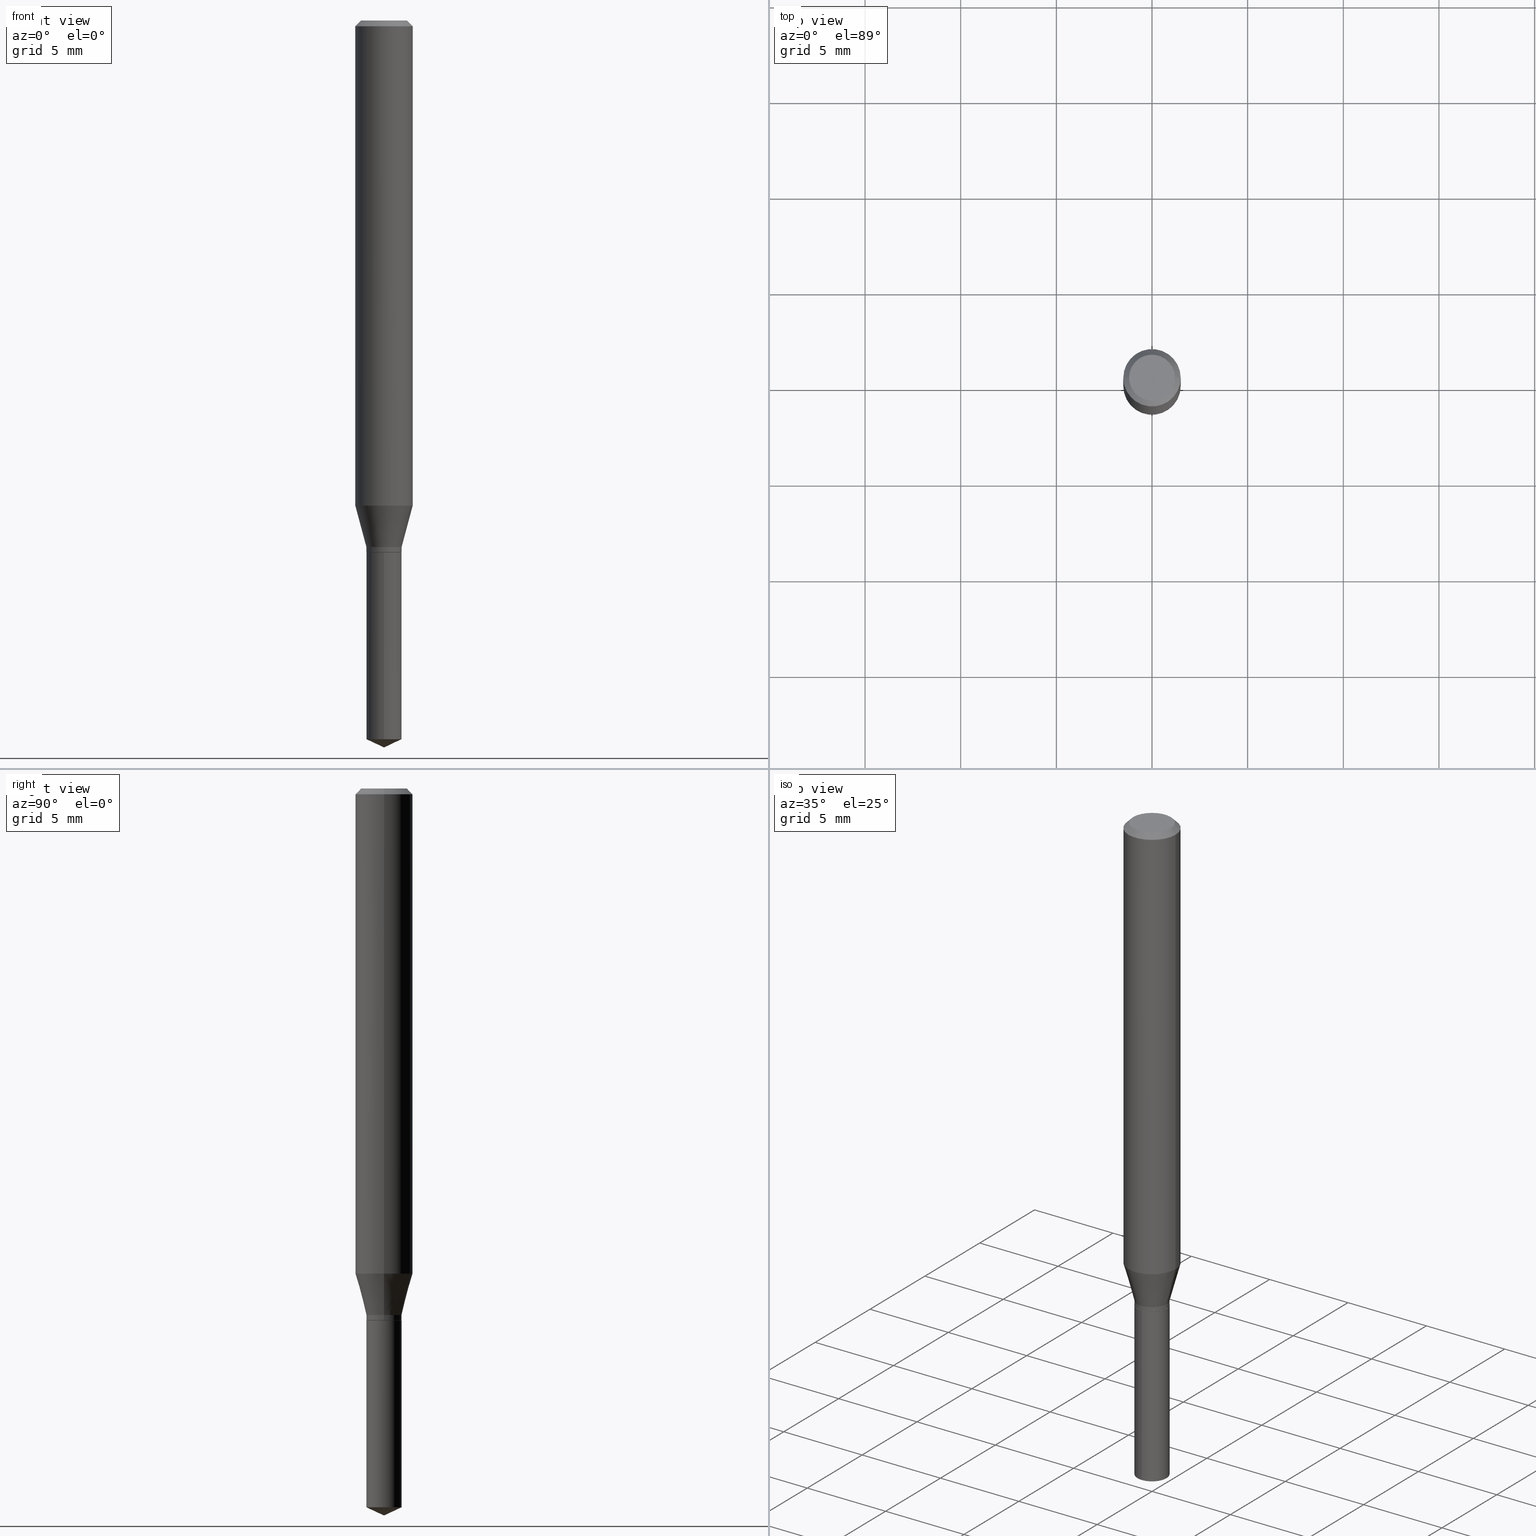
[diagram: canonical four-view strip — front | top / right | iso, engineering-drawing reading convention]
A machine part, canonical four-view strip (front | top / right | iso — engineering-drawing reading convention). The complete STEP part file that produces these views, byte-faithful:
ISO-10303-21;
HEADER;
FILE_DESCRIPTION (( 'STEP AP203' ),
    '1' );
FILE_NAME ('07581.STEP',
    '2024-04-23T23:16:48',
    ( '' ),
    ( '' ),
    'SwSTEP 2.0',
    'SolidWorks 2023',
    '' );
FILE_SCHEMA (( 'CONFIG_CONTROL_DESIGN' ));
ENDSEC;

DATA;
#1 = APPROVAL_ROLE ( '' ) ;
#2 = DIRECTION ( 'NONE',  ( -2.445470214571802116E-29, 3.491479321953280158E-15, 1.000000000000000000 ) ) ;
#3 = ADVANCED_FACE ( 'NONE', ( #307 ), #236, .F. ) ;
#4 = AXIS2_PLACEMENT_3D ( 'NONE', #257, #133, #23 ) ;
#5 = APPROVAL_PERSON_ORGANIZATION ( #386, #292, #40 ) ;
#6 = PRODUCT ( '07581', '07581', '', ( #34 ) ) ;
#7 = LINE ( 'NONE', #395, #233 ) ;
#8 = DIRECTION ( 'NONE',  ( 6.982962677686265922E-15, 1.000000000000000000, -3.491479321953280158E-15 ) ) ;
#9 = PERSON_AND_ORGANIZATION ( #211, #358 ) ;
#10 = DIRECTION ( 'NONE',  ( 0.2588190451025211836, 1.565188264969622559E-15, 0.9659258262890679791 ) ) ;
#11 = EDGE_CURVE ( 'NONE', #403, #477, #388, .T. ) ;
#12 = VECTOR ( 'NONE', #198, 39.37007874015748143 ) ;
#13 = CONICAL_SURFACE ( 'NONE', #38, 0.03620000000000000301, 0.2617993877991499074 ) ;
#14 = LINE ( 'NONE', #315, #456 ) ;
#15 = ADVANCED_FACE ( 'NONE', ( #482 ), #273, .T. ) ;
#16 = CARTESIAN_POINT ( 'NONE',  ( 2.675342873966538993E-29, -3.819680584694400481E-15, -1.093999999999999861 ) ) ;
#17 = ORIENTED_EDGE ( 'NONE', *, *, #64, .F. ) ;
#18 = DIRECTION ( 'NONE',  ( 1.000000000000000000, -6.982962677686261189E-15, 0.000000000000000000 ) ) ;
#19 = VERTEX_POINT ( 'NONE', #455 ) ;
#20 = AXIS2_PLACEMENT_3D ( 'NONE', #377, #263, #262 ) ;
#21 = LINE ( 'NONE', #476, #373 ) ;
#22 = VERTEX_POINT ( 'NONE', #79 ) ;
#23 = DIRECTION ( 'NONE',  ( 1.000000000000000000, -6.982962677686266711E-15, 0.000000000000000000 ) ) ;
#24 = EDGE_LOOP ( 'NONE', ( #484, #272, #218, #367 ) ) ;
#25 = FACE_OUTER_BOUND ( 'NONE', #328, .T. ) ;
#26 = ORIENTED_EDGE ( 'NONE', *, *, #468, .F. ) ;
#27 = CARTESIAN_POINT ( 'NONE',  ( 8.265746106709734507E-48, -1.180129479067563789E-33, -3.380025165646692144E-19 ) ) ;
#28 = CIRCLE ( 'NONE', #134, 0.03620000000000000301 ) ;
#29 = CARTESIAN_POINT ( 'NONE',  ( 2.888098660104663766E-31, -4.123439461173779647E-17, -0.01181000000000007044 ) ) ;
#30 = AXIS2_PLACEMENT_3D ( 'NONE', #27, #147, #410 ) ;
#31 = APPLICATION_PROTOCOL_DEFINITION ( 'international standard', 'config_control_design', 1994, #73 ) ;
#32 = VERTEX_POINT ( 'NONE', #72 ) ;
#33 = ADVANCED_FACE ( 'NONE', ( #371 ), #282, .T. ) ;
#34 = MECHANICAL_CONTEXT ( 'NONE', #231, 'mechanical' ) ;
#35 = VERTEX_POINT ( 'NONE', #445 ) ;
#36 = EDGE_CURVE ( 'NONE', #35, #22, #346, .T. ) ;
#37 = ORIENTED_EDGE ( 'NONE', *, *, #330, .F. ) ;
#38 = AXIS2_PLACEMENT_3D ( 'NONE', #179, #332, #55 ) ;
#39 = ORIENTED_EDGE ( 'NONE', *, *, #287, .T. ) ;
#40 = APPROVAL_ROLE ( '' ) ;
#41 = CARTESIAN_POINT ( 'NONE',  ( -0.03620000000000000301, -3.526152708425275685E-15, -1.083599999999999897 ) ) ;
#42 = DATE_AND_TIME ( #426, #130 ) ;
#43 = CARTESIAN_POINT ( 'NONE',  ( 2.572164703451925270E-16, 0.03619999999999484741, -1.479219662774789112 ) ) ;
#44 = AXIS2_PLACEMENT_3D ( 'NONE', #169, #470, #260 ) ;
#45 = MANIFOLD_SOLID_BREP ( 'Body-Move/Copy2[1]', #181 ) ;
#46 = DIRECTION ( 'NONE',  ( -2.445468806185136597E-29, 3.491481338843145583E-15, 1.000000000000000000 ) ) ;
#47 = DIRECTION ( 'NONE',  ( -2.445468806185136877E-29, 3.491481338843145188E-15, 1.000000000000000000 ) ) ;
#48 = APPROVAL_DATE_TIME ( #80, #369 ) ;
#49 = CARTESIAN_POINT ( 'NONE',  ( 2.676565608369631794E-29, -3.821426325363822773E-15, -1.094499999999999806 ) ) ;
#50 = PRODUCT_DEFINITION_FORMATION_WITH_SPECIFIED_SOURCE ( 'ANY', '', #6, .NOT_KNOWN. ) ;
#51 = DIRECTION ( 'NONE',  ( -6.982962677686265922E-15, -1.000000000000000000, 0.000000000000000000 ) ) ;
#52 = FACE_OUTER_BOUND ( 'NONE', #228, .T. ) ;
#53 = ORIENTED_EDGE ( 'NONE', *, *, #300, .F. ) ;
#54 = EDGE_CURVE ( 'NONE', #268, #403, #288, .T. ) ;
#55 = DIRECTION ( 'NONE',  ( 1.000000000000000000, -6.982962677686262766E-15, 0.000000000000000000 ) ) ;
#56 = EDGE_LOOP ( 'NONE', ( #362, #276, #293 ) ) ;
#57 = AXIS2_PLACEMENT_3D ( 'NONE', #131, #46, #162 ) ;
#58 = CONICAL_SURFACE ( 'NONE', #224, 0.03620000000000000301, 0.2617993877991499074 ) ;
#59 = CARTESIAN_POINT ( 'NONE',  ( -9.261968845786000133E-28, 1.322362114038720264E-13, 37.87397874015748300 ) ) ;
#60 = CC_DESIGN_APPROVAL ( #369, ( #50 ) ) ;
#61 = CARTESIAN_POINT ( 'NONE',  ( 2.676565608369632355E-29, -3.821426325363822773E-15, -1.094500000000000028 ) ) ;
#62 = VERTEX_POINT ( 'NONE', #357 ) ;
#63 = LENGTH_MEASURE_WITH_UNIT ( LENGTH_MEASURE( 0.02539999999999999897 ), #116 );
#64 = EDGE_CURVE ( 'NONE', #403, #22, #241, .T. ) ;
#65 = VERTEX_POINT ( 'NONE', #283 ) ;
#66 = CARTESIAN_POINT ( 'NONE',  ( 2.676565608369631794E-29, -3.821426325363822773E-15, -1.094499999999999806 ) ) ;
#67 = AXIS2_PLACEMENT_3D ( 'NONE', #119, #450, #380 ) ;
#68 = ORIENTED_EDGE ( 'NONE', *, *, #354, .T. ) ;
#69 = EDGE_LOOP ( 'NONE', ( #339, #370, #194, #95 ) ) ;
#70 = ADVANCED_FACE ( 'NONE', ( #318 ), #390, .T. ) ;
#71 = PERSON_AND_ORGANIZATION ( #211, #358 ) ;
#72 = CARTESIAN_POINT ( 'NONE',  ( -2.527832489322067476E-16, -0.03620000000000517942, -1.479219662774789112 ) ) ;
#73 = APPLICATION_CONTEXT ( 'configuration controlled 3d designs of mechanical parts and assemblies' ) ;
#74 = DIRECTION ( 'NONE',  ( -2.445468806185136597E-29, 3.491481338843145583E-15, 1.000000000000000000 ) ) ;
#75 = ORIENTED_EDGE ( 'NONE', *, *, #287, .F. ) ;
#76 = VECTOR ( 'NONE', #127, 39.37007874015748854 ) ;
#77 = CC_DESIGN_APPROVAL ( #292, ( #244 ) ) ;
#78 = SECURITY_CLASSIFICATION_LEVEL ( 'unclassified' ) ;
#79 = CARTESIAN_POINT ( 'NONE',  ( -0.05904999999999999832, -1.343854144028238123E-15, -0.01181000000000007044 ) ) ;
#80 = DATE_AND_TIME ( #394, #216 ) ;
#81 = EDGE_CURVE ( 'NONE', #62, #32, #14, .T. ) ;
#82 = LINE ( 'NONE', #387, #12 ) ;
#83 = FACE_OUTER_BOUND ( 'NONE', #417, .T. ) ;
#84 = CIRCLE ( 'NONE', #30, 0.04724000000000000421 ) ;
#85 = COORDINATED_UNIVERSAL_TIME_OFFSET ( 5, 0, .BEHIND. ) ;
#86 = CARTESIAN_POINT ( 'NONE',  ( 3.658668015054778287E-29, -5.223602213574301462E-15, -1.496099999999999985 ) ) ;
#87 = PRODUCT_DEFINITION ( 'UNKNOWN', '', #50, #433 ) ;
#88 = PERSON_AND_ORGANIZATION_ROLE ( 'creator' ) ;
#89 = CARTESIAN_POINT ( 'NONE',  ( 0.03570000000000000256, -4.070718092957222949E-15, -1.094500000000000028 ) ) ;
#90 = DIRECTION ( 'NONE',  ( 1.000000000000000000, -6.982962677686266711E-15, 4.876176775795935793E-29 ) ) ;
#91 = VECTOR ( 'NONE', #240, 39.37007874015748143 ) ;
#92 = APPROVAL_PERSON_ORGANIZATION ( #274, #369, #1 ) ;
#93 = FACE_OUTER_BOUND ( 'NONE', #180, .T. ) ;
#94 = EDGE_CURVE ( 'NONE', #22, #375, #469, .T. ) ;
#95 = ORIENTED_EDGE ( 'NONE', *, *, #419, .F. ) ;
#96 = DIRECTION ( 'NONE',  ( -2.445468806185136877E-29, 3.491481338843145188E-15, 1.000000000000000000 ) ) ;
#97 = EDGE_LOOP ( 'NONE', ( #302, #436, #265, #26 ) ) ;
#98 = CARTESIAN_POINT ( 'NONE',  ( -0.05905000000000011628, -3.066049378911078798E-15, -0.9983226390470507638 ) ) ;
#99 = ORIENTED_EDGE ( 'NONE', *, *, #154, .T. ) ;
#100 = AXIS2_PLACEMENT_3D ( 'NONE', #29, #191, #183 ) ;
#101 = AXIS2_PLACEMENT_3D ( 'NONE', #359, #296, #137 ) ;
#102 = CARTESIAN_POINT ( 'NONE',  ( 2.649909998382213991E-29, -3.783369178770431629E-15, -1.083599999999999897 ) ) ;
#103 = ORIENTED_EDGE ( 'NONE', *, *, #11, .F. ) ;
#104 = EDGE_CURVE ( 'NONE', #35, #479, #310, .T. ) ;
#105 = DIRECTION ( 'NONE',  ( 1.000000000000000000, -6.982962677686261189E-15, 0.000000000000000000 ) ) ;
#106 = ORIENTED_EDGE ( 'NONE', *, *, #411, .F. ) ;
#107 = DIRECTION ( 'NONE',  ( -2.445470214571802116E-29, 3.491479321953280158E-15, 1.000000000000000000 ) ) ;
#108 = ORIENTED_EDGE ( 'NONE', *, *, #419, .T. ) ;
#109 = CARTESIAN_POINT ( 'NONE',  ( 0.05905000000000011628, -3.897968810494794000E-15, -0.9983226390470507638 ) ) ;
#110 = AXIS2_PLACEMENT_3D ( 'NONE', #247, #321, #156 ) ;
#111 = ORIENTED_EDGE ( 'NONE', *, *, #159, .F. ) ;
#112 = CIRCLE ( 'NONE', #297, 0.03570000000000000256 ) ;
#113 = CC_DESIGN_SECURITY_CLASSIFICATION ( #244, ( #50 ) ) ;
#114 = CARTESIAN_POINT ( 'NONE',  ( 0.000000000000000000, 0.000000000000000000, 0.000000000000000000 ) ) ;
#115 = EDGE_LOOP ( 'NONE', ( #331, #68, #451, #413 ) ) ;
#116 =( LENGTH_UNIT ( ) NAMED_UNIT ( * ) SI_UNIT ( $, .METRE. ) );
#117 = ORIENTED_EDGE ( 'NONE', *, *, #210, .T. ) ;
#118 = APPROVAL_ROLE ( '' ) ;
#119 = CARTESIAN_POINT ( 'NONE',  ( 4.132873053354867254E-48, -5.900647395337818946E-34, -1.690012582823346072E-19 ) ) ;
#120 = VECTOR ( 'NONE', #151, 39.37007874015748143 ) ;
#121 = CIRCLE ( 'NONE', #199, 0.03620000000000000301 ) ;
#122 = CC_DESIGN_PERSON_AND_ORGANIZATION_ASSIGNMENT ( #420, #88, ( #50 ) ) ;
#123 = APPROVAL_DATE_TIME ( #285, #227 ) ;
#124 = CARTESIAN_POINT ( 'NONE',  ( 0.05905000000000006077, -4.123439461173744764E-16, 2.879382386107503023E-30 ) ) ;
#125 = DIRECTION ( 'NONE',  ( -2.445468806185136597E-29, 3.491481338843145583E-15, 1.000000000000000000 ) ) ;
#126 = CALENDAR_DATE ( 2024, 23, 4 ) ;
#127 = DIRECTION ( 'NONE',  ( -0.2588190451025211836, 5.211531920934547886E-15, 0.9659258262890679791 ) ) ;
#128 = EDGE_CURVE ( 'NONE', #479, #375, #202, .T. ) ;
#129 = VECTOR ( 'NONE', #385, 39.37007874015748143 ) ;
#130 = LOCAL_TIME ( 19, 16, 48.00000000000000000, #311 ) ;
#131 = CARTESIAN_POINT ( 'NONE',  ( 8.265746106709734507E-48, -1.180129479067563789E-33, -3.380025165646692144E-19 ) ) ;
#132 = DIRECTION ( 'NONE',  ( -2.445468806185136877E-29, 3.491481338843145188E-15, 1.000000000000000000 ) ) ;
#133 = DIRECTION ( 'NONE',  ( -2.445468806185136597E-29, 3.491481338843145583E-15, 1.000000000000000000 ) ) ;
#134 = AXIS2_PLACEMENT_3D ( 'NONE', #205, #324, #51 ) ;
#135 = DIRECTION ( 'NONE',  ( -6.982962677686269077E-15, -1.000000000000000000, 3.520397390770426654E-15 ) ) ;
#136 = ORIENTED_EDGE ( 'NONE', *, *, #176, .T. ) ;
#137 = DIRECTION ( 'NONE',  ( 1.000000000000000000, -6.982962677686265922E-15, 4.876176775795935793E-29 ) ) ;
#138 = DIRECTION ( 'NONE',  ( 1.000000000000000000, -6.982962677686266711E-15, 4.876176775795935793E-29 ) ) ;
#139 = ORIENTED_EDGE ( 'NONE', *, *, #300, .T. ) ;
#140 = CC_DESIGN_DATE_AND_TIME_ASSIGNMENT ( #197, #349, ( #244 ) ) ;
#141 = DIRECTION ( 'NONE',  ( -2.445468806185136597E-29, 3.491481338843145583E-15, 1.000000000000000000 ) ) ;
#142 = ORIENTED_EDGE ( 'NONE', *, *, #415, .F. ) ;
#143 = DIRECTION ( 'NONE',  ( -6.982962677686265922E-15, -1.000000000000000000, 3.773270709481026305E-15 ) ) ;
#144 = DIRECTION ( 'NONE',  ( -1.000000000000000000, 6.982962677686266711E-15, 0.000000000000000000 ) ) ;
#145 = CARTESIAN_POINT ( 'NONE',  ( -9.261968845786000133E-28, 1.322362114038720264E-13, 37.87397874015748300 ) ) ;
#146 = VERTEX_POINT ( 'NONE', #429 ) ;
#147 = DIRECTION ( 'NONE',  ( -2.445468806185136597E-29, 3.491481338843145583E-15, 1.000000000000000000 ) ) ;
#148 = CIRCLE ( 'NONE', #432, 0.03620000000000000301 ) ;
#149 = ORIENTED_EDGE ( 'NONE', *, *, #184, .T. ) ;
#150 =( CONVERSION_BASED_UNIT ( 'INCH', #63 ) LENGTH_UNIT ( ) NAMED_UNIT ( #219 ) );
#151 = DIRECTION ( 'NONE',  ( -0.7071067811865453523, 2.468850131082234184E-15, -0.7071067811865496822 ) ) ;
#152 = DIRECTION ( 'NONE',  ( -6.982962677686265922E-15, -1.000000000000000000, 0.000000000000000000 ) ) ;
#153 = ORIENTED_EDGE ( 'NONE', *, *, #104, .T. ) ;
#154 = EDGE_CURVE ( 'NONE', #65, #213, #325, .T. ) ;
#155 = PERSON_AND_ORGANIZATION_ROLE ( 'design_supplier' ) ;
#156 = DIRECTION ( 'NONE',  ( 1.000000000000000000, -6.982962677686261189E-15, 0.000000000000000000 ) ) ;
#157 = AXIS2_PLACEMENT_3D ( 'NONE', #397, #439, #138 ) ;
#158 = CARTESIAN_POINT ( 'NONE',  ( -0.05905000000000006077, 4.195754854663395916E-16, -2.904631170795524694E-30 ) ) ;
#159 = EDGE_CURVE ( 'NONE', #401, #146, #201, .T. ) ;
#160 = DIRECTION ( 'NONE',  ( -6.982962677686265922E-15, -1.000000000000000000, 3.773270709481026305E-15 ) ) ;
#161 = CALENDAR_DATE ( 2024, 23, 4 ) ;
#162 = DIRECTION ( 'NONE',  ( 1.000000000000000000, -6.982962677686266711E-15, 4.876185090822587894E-29 ) ) ;
#163 = AXIS2_PLACEMENT_3D ( 'NONE', #280, #352, #8 ) ;
#164 = CONICAL_SURFACE ( 'NONE', #365, 84.42940631927498885, 1.134464013796318893 ) ;
#165 = CARTESIAN_POINT ( 'NONE',  ( 2.676565608369631794E-29, -3.821426325363822773E-15, -1.094499999999999806 ) ) ;
#166 = CYLINDRICAL_SURFACE ( 'NONE', #266, 0.03620000000000000301 ) ;
#167 = ORIENTED_EDGE ( 'NONE', *, *, #438, .T. ) ;
#168 = ADVANCED_FACE ( 'NONE', ( #461 ), #427, .F. ) ;
#169 = CARTESIAN_POINT ( 'NONE',  ( 2.675342873966538993E-29, -3.819680584694400481E-15, -1.093999999999999861 ) ) ;
#170 = VERTEX_POINT ( 'NONE', #43 ) ;
#171 = AXIS2_PLACEMENT_3D ( 'NONE', #459, #424, #313 ) ;
#172 = AXIS2_PLACEMENT_3D ( 'NONE', #59, #217, #135 ) ;
#173 = DIRECTION ( 'NONE',  ( 1.000000000000000000, -6.982962677686262766E-15, 0.000000000000000000 ) ) ;
#174 = EDGE_LOOP ( 'NONE', ( #188, #486 ) ) ;
#175 = CYLINDRICAL_SURFACE ( 'NONE', #448, 0.03620000000000000301 ) ;
#176 = EDGE_CURVE ( 'NONE', #401, #434, #464, .T. ) ;
#177 = UNCERTAINTY_MEASURE_WITH_UNIT (LENGTH_MEASURE( 1.000000000000000082E-05 ), #150, 'distance_accuracy_value', 'NONE');
#178 = ORIENTED_EDGE ( 'NONE', *, *, #193, .F. ) ;
#179 = CARTESIAN_POINT ( 'NONE',  ( 2.649909998382213991E-29, -3.783369178770431629E-15, -1.083599999999999897 ) ) ;
#180 = EDGE_LOOP ( 'NONE', ( #136, #405, #53, #111 ) ) ;
#181 = CLOSED_SHELL ( 'NONE', ( #200, #474, #340, #70, #168 ) ) ;
#182 = DIRECTION ( 'NONE',  ( -2.445468806185136597E-29, 3.491481338843145583E-15, 1.000000000000000000 ) ) ;
#183 = DIRECTION ( 'NONE',  ( -1.000000000000000000, 6.982962677686266711E-15, 0.000000000000000000 ) ) ;
#184 = EDGE_CURVE ( 'NONE', #62, #170, #196, .T. ) ;
#185 = FACE_OUTER_BOUND ( 'NONE', #258, .T. ) ;
#186 = EDGE_LOOP ( 'NONE', ( #304, #149, #106 ) ) ;
#187 = CYLINDRICAL_SURFACE ( 'NONE', #305, 0.05905000000000006077 ) ;
#188 = ORIENTED_EDGE ( 'NONE', *, *, #176, .F. ) ;
#189 = VECTOR ( 'NONE', #47, 39.37007874015748143 ) ;
#190 = CARTESIAN_POINT ( 'NONE',  ( 2.649909998382213991E-29, -3.783369178770431629E-15, -1.083599999999999897 ) ) ;
#191 = DIRECTION ( 'NONE',  ( 2.445468806185136597E-29, -3.491481338843145583E-15, -1.000000000000000000 ) ) ;
#192 = DIRECTION ( 'NONE',  ( -2.445468806185136597E-29, 3.491481338843145583E-15, 1.000000000000000000 ) ) ;
#193 = EDGE_CURVE ( 'NONE', #412, #477, #355, .T. ) ;
#194 = ORIENTED_EDGE ( 'NONE', *, *, #320, .T. ) ;
#195 = CALENDAR_DATE ( 2024, 23, 4 ) ;
#196 = LINE ( 'NONE', #86, #372 ) ;
#197 = DATE_AND_TIME ( #161, #344 ) ;
#198 = DIRECTION ( 'NONE',  ( -0.7071067811864267805, 7.493145998869918709E-15, 0.7071067811866682540 ) ) ;
#199 = AXIS2_PLACEMENT_3D ( 'NONE', #249, #107, #152 ) ;
#200 = ADVANCED_FACE ( 'NONE', ( #246 ), #350, .T. ) ;
#201 = LINE ( 'NONE', #89, #129 ) ;
#202 = LINE ( 'NONE', #430, #91 ) ;
#203 = LINE ( 'NONE', #124, #356 ) ;
#204 = APPROVAL_PERSON_ORGANIZATION ( #229, #227, #118 ) ;
#205 = CARTESIAN_POINT ( 'NONE',  ( 3.617386084645487134E-29, -5.164667072690838568E-15, -1.479219662774789112 ) ) ;
#206 = EDGE_CURVE ( 'NONE', #146, #412, #7, .T. ) ;
#207 = ADVANCED_BREP_SHAPE_REPRESENTATION ( '07581', ( #45, #220, #425 ), #284 ) ;
#208 = LINE ( 'NONE', #402, #243 ) ;
#209 = ORIENTED_EDGE ( 'NONE', *, *, #453, .T. ) ;
#210 = EDGE_CURVE ( 'NONE', #477, #375, #203, .T. ) ;
#211 = PERSON ( 'UNSPECIFIED', 'UNSPECIFIED', 'UNSPECIFIED', ('UNSPECIFIED'), ('UNSPECIFIED'), ('UNSPECIFIED') ) ;
#212 = DIRECTION ( 'NONE',  ( -2.445470214571802396E-29, 3.491479321953280158E-15, 1.000000000000000000 ) ) ;
#213 = VERTEX_POINT ( 'NONE', #423 ) ;
#214 = CIRCLE ( 'NONE', #471, 0.03620000000000000301 ) ;
#215 = EDGE_CURVE ( 'NONE', #434, #19, #82, .T. ) ;
#216 = LOCAL_TIME ( 19, 16, 48.00000000000000000, #85 ) ;
#217 = DIRECTION ( 'NONE',  ( -2.445470214571802116E-29, 3.491479321953280158E-15, 1.000000000000000000 ) ) ;
#218 = ORIENTED_EDGE ( 'NONE', *, *, #36, .T. ) ;
#219 = DIMENSIONAL_EXPONENTS ( 1.000000000000000000, 0.000000000000000000, 0.000000000000000000, 0.000000000000000000, 0.000000000000000000, 0.000000000000000000, 0.000000000000000000 ) ;
#220 = MANIFOLD_SOLID_BREP ( 'Body-Move/Copy2[2]', #317 ) ;
#221 = LINE ( 'NONE', #291, #319 ) ;
#222 = ORIENTED_EDGE ( 'NONE', *, *, #193, .T. ) ;
#223 = ORIENTED_EDGE ( 'NONE', *, *, #128, .T. ) ;
#224 = AXIS2_PLACEMENT_3D ( 'NONE', #102, #361, #173 ) ;
#225 = PERSON_AND_ORGANIZATION_ROLE ( 'design_owner' ) ;
#226 = ORIENTED_EDGE ( 'NONE', *, *, #483, .T. ) ;
#227 = APPROVAL ( #392, 'UNSPECIFIED' ) ;
#228 = EDGE_LOOP ( 'NONE', ( #443, #421, #222, #103 ) ) ;
#229 = PERSON_AND_ORGANIZATION ( #211, #358 ) ;
#230 = ORIENTED_EDGE ( 'NONE', *, *, #210, .F. ) ;
#231 = APPLICATION_CONTEXT ( 'configuration controlled 3d designs of mechanical parts and assemblies' ) ;
#232 = CC_DESIGN_PERSON_AND_ORGANIZATION_ASSIGNMENT ( #9, #155, ( #50 ) ) ;
#233 = VECTOR ( 'NONE', #132, 39.37007874015748143 ) ;
#234 =( NAMED_UNIT ( * ) PLANE_ANGLE_UNIT ( ) SI_UNIT ( $, .RADIAN. ) );
#235 = AXIS2_PLACEMENT_3D ( 'NONE', #61, #473, #294 ) ;
#236 = PLANE ( 'NONE',  #67 ) ;
#237 = PERSON_AND_ORGANIZATION ( #211, #358 ) ;
#238 = DIRECTION ( 'NONE',  ( 6.439704144417037453E-15, 0.9063077870366533784, 0.4226182617406920583 ) ) ;
#239 = PERSON_AND_ORGANIZATION_ROLE ( 'classification_officer' ) ;
#240 = DIRECTION ( 'NONE',  ( 0.7071067811865453523, -7.319954787623248157E-15, -0.7071067811865496822 ) ) ;
#241 = LINE ( 'NONE', #158, #189 ) ;
#242 = CIRCLE ( 'NONE', #457, 0.05904999999999999832 ) ;
#243 = VECTOR ( 'NONE', #212, 39.37007874015748143 ) ;
#244 = SECURITY_CLASSIFICATION ( '', '', #78 ) ;
#245 = APPROVAL_STATUS ( 'not_yet_approved' ) ;
#246 = FACE_OUTER_BOUND ( 'NONE', #115, .T. ) ;
#247 = CARTESIAN_POINT ( 'NONE',  ( 2.676565608369632355E-29, -3.821426325363822773E-15, -1.094500000000000028 ) ) ;
#248 = ADVANCED_FACE ( 'NONE', ( #83 ), #351, .T. ) ;
#249 = CARTESIAN_POINT ( 'NONE',  ( 3.617386084645487134E-29, -5.164667072690838568E-15, -1.479219662774789112 ) ) ;
#250 = AXIS2_PLACEMENT_3D ( 'NONE', #463, #125, #466 ) ;
#251 = CONICAL_SURFACE ( 'NONE', #172, 84.42940631927498885, 1.134464013796318893 ) ;
#252 = CARTESIAN_POINT ( 'NONE',  ( -0.03620000000000000301, -3.544308411387259717E-15, -1.083599999999999897 ) ) ;
#253 = ORIENTED_EDGE ( 'NONE', *, *, #376, .T. ) ;
#254 = CARTESIAN_POINT ( 'NONE',  ( 0.000000000000000000, 0.000000000000000000, 0.000000000000000000 ) ) ;
#255 = EDGE_LOOP ( 'NONE', ( #409, #209, #378, #37 ) ) ;
#256 = EDGE_CURVE ( 'NONE', #170, #32, #28, .T. ) ;
#257 = CARTESIAN_POINT ( 'NONE',  ( 2.441366872297986055E-29, -3.485624864377419475E-15, -0.9983226390470507638 ) ) ;
#258 = EDGE_LOOP ( 'NONE', ( #39, #441, #475, #230 ) ) ;
#259 = AXIS2_PLACEMENT_3D ( 'NONE', #414, #337, #144 ) ;
#260 = DIRECTION ( 'NONE',  ( 1.000000000000000000, -6.982962677686262766E-15, 0.000000000000000000 ) ) ;
#261 = ORIENTED_EDGE ( 'NONE', *, *, #11, .T. ) ;
#262 = DIRECTION ( 'NONE',  ( 1.000000000000000000, -6.982962677686262766E-15, 0.000000000000000000 ) ) ;
#263 = DIRECTION ( 'NONE',  ( -2.445468806185136597E-29, 3.491481338843145583E-15, 1.000000000000000000 ) ) ;
#264 = ADVANCED_FACE ( 'NONE', ( #467 ), #368, .F. ) ;
#265 = ORIENTED_EDGE ( 'NONE', *, *, #206, .T. ) ;
#266 = AXIS2_PLACEMENT_3D ( 'NONE', #254, #408, #329 ) ;
#267 =( NAMED_UNIT ( * ) SI_UNIT ( $, .STERADIAN. ) SOLID_ANGLE_UNIT ( ) );
#268 = VERTEX_POINT ( 'NONE', #252 ) ;
#269 = DIRECTION ( 'NONE',  ( 1.000000000000000000, 0.000000000000000000, 0.000000000000000000 ) ) ;
#270 = DIRECTION ( 'NONE',  ( -2.445468806185136597E-29, 3.491481338843145583E-15, 1.000000000000000000 ) ) ;
#271 = ADVANCED_FACE ( 'NONE', ( #298 ), #166, .T. ) ;
#272 = ORIENTED_EDGE ( 'NONE', *, *, #104, .F. ) ;
#273 = CONICAL_SURFACE ( 'NONE', #259, 0.05904999999999999832, 0.7853981633974452814 ) ;
#274 = PERSON_AND_ORGANIZATION ( #211, #358 ) ;
#275 = LOCAL_TIME ( 19, 16, 48.00000000000000000, #277 ) ;
#276 = ORIENTED_EDGE ( 'NONE', *, *, #81, .T. ) ;
#277 = COORDINATED_UNIVERSAL_TIME_OFFSET ( 5, 0, .BEHIND. ) ;
#278 = DIRECTION ( 'NONE',  ( -2.445468806185136877E-29, 3.491481338843145188E-15, 1.000000000000000000 ) ) ;
#279 = COORDINATED_UNIVERSAL_TIME_OFFSET ( 5, 0, .BEHIND. ) ;
#280 = CARTESIAN_POINT ( 'NONE',  ( 2.676565608369631794E-29, -3.821426325363822773E-15, -1.094499999999999806 ) ) ;
#281 = APPROVAL_STATUS ( 'not_yet_approved' ) ;
#282 = CONICAL_SURFACE ( 'NONE', #100, 0.05904999999999999832, 0.7853981633974452814 ) ;
#283 = CARTESIAN_POINT ( 'NONE',  ( -2.527832489322161153E-16, -0.03620000000000382634, -1.094499999999999806 ) ) ;
#284 =( GEOMETRIC_REPRESENTATION_CONTEXT ( 3 ) GLOBAL_UNCERTAINTY_ASSIGNED_CONTEXT ( ( #177 ) ) GLOBAL_UNIT_ASSIGNED_CONTEXT ( ( #150, #234, #267 ) ) REPRESENTATION_CONTEXT ( 'NONE', 'WORKASPACE' ) );
#285 = DATE_AND_TIME ( #195, #335 ) ;
#286 = DIRECTION ( 'NONE',  ( -6.328713451373384367E-15, -0.9063077870366504918, 0.4226182617406983866 ) ) ;
#287 = EDGE_CURVE ( 'NONE', #477, #403, #418, .T. ) ;
#288 = LINE ( 'NONE', #41, #76 ) ;
#289 = FACE_OUTER_BOUND ( 'NONE', #56, .T. ) ;
#290 = ORIENTED_EDGE ( 'NONE', *, *, #54, .T. ) ;
#291 = CARTESIAN_POINT ( 'NONE',  ( 2.572164703451830113E-16, 0.03619999999999618662, -1.094500000000000028 ) ) ;
#292 = APPROVAL ( #281, 'UNSPECIFIED' ) ;
#293 = ORIENTED_EDGE ( 'NONE', *, *, #256, .F. ) ;
#294 = DIRECTION ( 'NONE',  ( 1.000000000000000000, -6.982962677686261189E-15, 0.000000000000000000 ) ) ;
#295 = EDGE_LOOP ( 'NONE', ( #139, #253, #142, #308 ) ) ;
#296 = DIRECTION ( 'NONE',  ( -2.438088387897960049E-29, 3.491481338843145188E-15, 1.000000000000000000 ) ) ;
#297 = AXIS2_PLACEMENT_3D ( 'NONE', #446, #182, #105 ) ;
#298 = FACE_OUTER_BOUND ( 'NONE', #97, .T. ) ;
#299 = ORIENTED_EDGE ( 'NONE', *, *, #94, .F. ) ;
#300 = EDGE_CURVE ( 'NONE', #146, #19, #148, .T. ) ;
#301 = CARTESIAN_POINT ( 'NONE',  ( -0.03570000000000000256, -3.565113341523356133E-15, -1.094500000000000028 ) ) ;
#302 = ORIENTED_EDGE ( 'NONE', *, *, #376, .F. ) ;
#303 = DIRECTION ( 'NONE',  ( 1.000000000000000000, -6.982962677686262766E-15, 0.000000000000000000 ) ) ;
#304 = ORIENTED_EDGE ( 'NONE', *, *, #81, .F. ) ;
#305 = AXIS2_PLACEMENT_3D ( 'NONE', #338, #192, #485 ) ;
#306 = ADVANCED_FACE ( 'NONE', ( #93 ), #312, .T. ) ;
#307 = FACE_OUTER_BOUND ( 'NONE', #447, .T. ) ;
#308 = ORIENTED_EDGE ( 'NONE', *, *, #206, .F. ) ;
#309 = EDGE_LOOP ( 'NONE', ( #99, #108 ) ) ;
#310 = CIRCLE ( 'NONE', #57, 0.04724000000000000421 ) ;
#311 = COORDINATED_UNIVERSAL_TIME_OFFSET ( 5, 0, .BEHIND. ) ;
#312 = CONICAL_SURFACE ( 'NONE', #449, 0.03570000000000000256, 0.7853981633972775267 ) ;
#313 = DIRECTION ( 'NONE',  ( -6.982962677686265922E-15, -1.000000000000000000, 3.773270709481026305E-15 ) ) ;
#314 = CC_DESIGN_PERSON_AND_ORGANIZATION_ASSIGNMENT ( #71, #225, ( #6 ) ) ;
#315 = CARTESIAN_POINT ( 'NONE',  ( 3.658664905062460986E-29, -5.223606628546217219E-15, -1.496099999999999985 ) ) ;
#316 = CARTESIAN_POINT ( 'NONE',  ( 0.03620000000000000301, -4.036152427702674812E-15, -1.083599999999999897 ) ) ;
#317 = CLOSED_SHELL ( 'NONE', ( #306, #15, #460, #384, #407, #271, #323, #248, #33, #3, #264, #391 ) ) ;
#318 = FACE_OUTER_BOUND ( 'NONE', #69, .T. ) ;
#319 = VECTOR ( 'NONE', #435, 39.37007874015748143 ) ;
#320 = EDGE_CURVE ( 'NONE', #32, #65, #208, .T. ) ;
#321 = DIRECTION ( 'NONE',  ( -2.445468806185136597E-29, 3.491481338843145583E-15, 1.000000000000000000 ) ) ;
#322 = CARTESIAN_POINT ( 'NONE',  ( 2.676565608369632355E-29, -3.821426325363822773E-15, -1.094500000000000028 ) ) ;
#323 = ADVANCED_FACE ( 'NONE', ( #52 ), #58, .T. ) ;
#324 = DIRECTION ( 'NONE',  ( -2.445470214571802116E-29, 3.491479321953280158E-15, 1.000000000000000000 ) ) ;
#325 = CIRCLE ( 'NONE', #343, 0.03620000000000000301 ) ;
#326 = CIRCLE ( 'NONE', #381, 0.03620000000000000301 ) ;
#327 = FACE_OUTER_BOUND ( 'NONE', #255, .T. ) ;
#328 = EDGE_LOOP ( 'NONE', ( #472, #290, #75, #178 ) ) ;
#329 = DIRECTION ( 'NONE',  ( 1.000000000000000000, -6.982962677686266711E-15, 4.876176775795935793E-29 ) ) ;
#330 = EDGE_CURVE ( 'NONE', #19, #146, #406, .T. ) ;
#331 = ORIENTED_EDGE ( 'NONE', *, *, #411, .T. ) ;
#332 = DIRECTION ( 'NONE',  ( -2.445468806185136597E-29, 3.491481338843145583E-15, 1.000000000000000000 ) ) ;
#333 = ORIENTED_EDGE ( 'NONE', *, *, #36, .F. ) ;
#334 = CC_DESIGN_PERSON_AND_ORGANIZATION_ASSIGNMENT ( #462, #383, ( #87 ) ) ;
#335 = LOCAL_TIME ( 19, 16, 48.00000000000000000, #279 ) ;
#336 = DIRECTION ( 'NONE',  ( -6.982962677686269077E-15, -1.000000000000000000, 3.520397390770426654E-15 ) ) ;
#337 = DIRECTION ( 'NONE',  ( 2.445468806185136597E-29, -3.491481338843145583E-15, -1.000000000000000000 ) ) ;
#338 = CARTESIAN_POINT ( 'NONE',  ( 0.000000000000000000, 0.000000000000000000, 0.000000000000000000 ) ) ;
#339 = ORIENTED_EDGE ( 'NONE', *, *, #354, .F. ) ;
#340 = ADVANCED_FACE ( 'NONE', ( #289 ), #251, .T. ) ;
#341 = FACE_OUTER_BOUND ( 'NONE', #186, .T. ) ;
#342 = ORIENTED_EDGE ( 'NONE', *, *, #483, .F. ) ;
#343 = AXIS2_PLACEMENT_3D ( 'NONE', #165, #2, #393 ) ;
#344 = LOCAL_TIME ( 19, 16, 48.00000000000000000, #422 ) ;
#345 = CARTESIAN_POINT ( 'NONE',  ( 2.888098660104663766E-31, -4.123439461173779647E-17, -0.01181000000000007044 ) ) ;
#346 = LINE ( 'NONE', #488, #120 ) ;
#347 = DIRECTION ( 'NONE',  ( 0.000000000000000000, 0.000000000000000000, 1.000000000000000000 ) ) ;
#348 = EDGE_LOOP ( 'NONE', ( #342, #223, #167, #333 ) ) ;
#349 = DATE_TIME_ROLE ( 'classification_date' ) ;
#350 = CYLINDRICAL_SURFACE ( 'NONE', #171, 0.03620000000000000301 ) ;
#351 = CYLINDRICAL_SURFACE ( 'NONE', #157, 0.05905000000000006077 ) ;
#352 = DIRECTION ( 'NONE',  ( 2.445470214571801836E-29, -3.491479321953280158E-15, -1.000000000000000000 ) ) ;
#353 = DATE_AND_TIME ( #126, #275 ) ;
#354 = EDGE_CURVE ( 'NONE', #170, #213, #221, .T. ) ;
#355 = LINE ( 'NONE', #316, #440 ) ;
#356 = VECTOR ( 'NONE', #278, 39.37007874015748143 ) ;
#357 = CARTESIAN_POINT ( 'NONE',  ( 3.658667988020872822E-29, -5.223602213574301462E-15, -1.496099999999999985 ) ) ;
#358 = ORGANIZATION ( 'UNSPECIFIED', 'UNSPECIFIED', '' ) ;
#359 = CARTESIAN_POINT ( 'NONE',  ( -2.476797249303447820E-30, -8.009112080357571040E-15, -1.094500000000000028 ) ) ;
#360 = PRODUCT_RELATED_PRODUCT_CATEGORY ( 'detail', '', ( #6 ) ) ;
#361 = DIRECTION ( 'NONE',  ( -2.445468806185136597E-29, 3.491481338843145583E-15, 1.000000000000000000 ) ) ;
#362 = ORIENTED_EDGE ( 'NONE', *, *, #184, .F. ) ;
#363 = CARTESIAN_POINT ( 'NONE',  ( 0.05904999999999999832, -4.535783407291118600E-16, -0.01181000000000007044 ) ) ;
#364 = AXIS2_PLACEMENT_3D ( 'NONE', #382, #270, #490 ) ;
#365 = AXIS2_PLACEMENT_3D ( 'NONE', #145, #444, #336 ) ;
#366 = FACE_OUTER_BOUND ( 'NONE', #295, .T. ) ;
#367 = ORIENTED_EDGE ( 'NONE', *, *, #94, .T. ) ;
#368 = PLANE ( 'NONE',  #101 ) ;
#369 = APPROVAL ( #245, 'UNSPECIFIED' ) ;
#370 = ORIENTED_EDGE ( 'NONE', *, *, #256, .T. ) ;
#371 = FACE_OUTER_BOUND ( 'NONE', #24, .T. ) ;
#372 = VECTOR ( 'NONE', #238, 39.37007874015748143 ) ;
#373 = VECTOR ( 'NONE', #96, 39.37007874015748143 ) ;
#374 = CARTESIAN_POINT ( 'NONE',  ( 0.03620000000000000301, -4.036152427702674812E-15, -1.083599999999999897 ) ) ;
#375 = VERTEX_POINT ( 'NONE', #363 ) ;
#376 = EDGE_CURVE ( 'NONE', #19, #268, #21, .T. ) ;
#377 = CARTESIAN_POINT ( 'NONE',  ( 2.649909998382213991E-29, -3.783369178770431629E-15, -1.083599999999999897 ) ) ;
#378 = ORIENTED_EDGE ( 'NONE', *, *, #159, .T. ) ;
#379 = DIRECTION ( 'NONE',  ( -2.445470214571802116E-29, 3.491479321953280158E-15, 1.000000000000000000 ) ) ;
#380 = DIRECTION ( 'NONE',  ( -1.000000000000000000, 6.982962677686265922E-15, -4.876176775795935793E-29 ) ) ;
#381 = AXIS2_PLACEMENT_3D ( 'NONE', #66, #379, #143 ) ;
#382 = CARTESIAN_POINT ( 'NONE',  ( 2.441366872297986055E-29, -3.485624864377419475E-15, -0.9983226390470507638 ) ) ;
#383 = PERSON_AND_ORGANIZATION_ROLE ( 'creator' ) ;
#384 = ADVANCED_FACE ( 'NONE', ( #25 ), #13, .T. ) ;
#385 = DIRECTION ( 'NONE',  ( 0.7071067811864267805, -2.468850131080992517E-15, 0.7071067811866682540 ) ) ;
#386 = PERSON_AND_ORGANIZATION ( #211, #358 ) ;
#387 = CARTESIAN_POINT ( 'NONE',  ( -0.03570000000000000256, -3.567762568697467334E-15, -1.094500000000000028 ) ) ;
#388 = CIRCLE ( 'NONE', #364, 0.05905000000000011628 ) ;
#389 = CIRCLE ( 'NONE', #20, 0.03620000000000000301 ) ;
#390 = CYLINDRICAL_SURFACE ( 'NONE', #396, 0.03620000000000000301 ) ;
#391 = ADVANCED_FACE ( 'NONE', ( #327 ), #398, .T. ) ;
#392 = APPROVAL_STATUS ( 'not_yet_approved' ) ;
#393 = DIRECTION ( 'NONE',  ( -6.982962677686265922E-15, -1.000000000000000000, 3.773270709481026305E-15 ) ) ;
#394 = CALENDAR_DATE ( 2024, 23, 4 ) ;
#395 = CARTESIAN_POINT ( 'NONE',  ( 0.03620000000000000301, -2.527832489322428873E-16, 1.765175992838128945E-30 ) ) ;
#396 = AXIS2_PLACEMENT_3D ( 'NONE', #49, #465, #160 ) ;
#397 = CARTESIAN_POINT ( 'NONE',  ( 0.000000000000000000, 0.000000000000000000, 0.000000000000000000 ) ) ;
#398 = CONICAL_SURFACE ( 'NONE', #235, 0.03570000000000000256, 0.7853981633972775267 ) ;
#399 = DIRECTION ( 'NONE',  ( -2.445468806185136597E-29, 3.491481338843145583E-15, 1.000000000000000000 ) ) ;
#400 = CC_DESIGN_PERSON_AND_ORGANIZATION_ASSIGNMENT ( #237, #239, ( #244 ) ) ;
#401 = VERTEX_POINT ( 'NONE', #437 ) ;
#402 = CARTESIAN_POINT ( 'NONE',  ( -2.527832489322161153E-16, -0.03620000000000382634, -1.094499999999999806 ) ) ;
#403 = VERTEX_POINT ( 'NONE', #98 ) ;
#404 = DIRECTION ( 'NONE',  ( -2.445468806185136597E-29, 3.491481338843145583E-15, 1.000000000000000000 ) ) ;
#405 = ORIENTED_EDGE ( 'NONE', *, *, #215, .T. ) ;
#406 = CIRCLE ( 'NONE', #44, 0.03620000000000000301 ) ;
#407 = ADVANCED_FACE ( 'NONE', ( #366 ), #175, .T. ) ;
#408 = DIRECTION ( 'NONE',  ( -2.445468806185136597E-29, 3.491481338843145583E-15, 1.000000000000000000 ) ) ;
#409 = ORIENTED_EDGE ( 'NONE', *, *, #215, .F. ) ;
#410 = DIRECTION ( 'NONE',  ( 1.000000000000000000, -6.982962677686266711E-15, 4.876185090822587894E-29 ) ) ;
#411 = EDGE_CURVE ( 'NONE', #32, #170, #121, .T. ) ;
#412 = VERTEX_POINT ( 'NONE', #374 ) ;
#413 = ORIENTED_EDGE ( 'NONE', *, *, #320, .F. ) ;
#414 = CARTESIAN_POINT ( 'NONE',  ( 2.888098660104663766E-31, -4.123439461173779647E-17, -0.01181000000000007044 ) ) ;
#415 = EDGE_CURVE ( 'NONE', #412, #268, #214, .T. ) ;
#416 = APPLICATION_PROTOCOL_DEFINITION ( 'international standard', 'config_control_design', 1994, #231 ) ;
#417 = EDGE_LOOP ( 'NONE', ( #17, #261, #117, #299 ) ) ;
#418 = CIRCLE ( 'NONE', #4, 0.05905000000000011628 ) ;
#419 = EDGE_CURVE ( 'NONE', #213, #65, #326, .T. ) ;
#420 = PERSON_AND_ORGANIZATION ( #211, #358 ) ;
#421 = ORIENTED_EDGE ( 'NONE', *, *, #468, .T. ) ;
#422 = COORDINATED_UNIVERSAL_TIME_OFFSET ( 5, 0, .BEHIND. ) ;
#423 = CARTESIAN_POINT ( 'NONE',  ( 2.572164703451924284E-16, 0.03619999999999617968, -1.094500000000000028 ) ) ;
#424 = DIRECTION ( 'NONE',  ( -2.445470214571802116E-29, 3.491479321953280158E-15, 1.000000000000000000 ) ) ;
#425 = AXIS2_PLACEMENT_3D ( 'NONE', #114, #347, #269 ) ;
#426 = CALENDAR_DATE ( 2024, 23, 4 ) ;
#427 = PLANE ( 'NONE',  #163 ) ;
#428 = DATE_TIME_ROLE ( 'creation_date' ) ;
#429 = CARTESIAN_POINT ( 'NONE',  ( 0.03620000000000000301, -4.072463833626643664E-15, -1.093999999999999861 ) ) ;
#430 = CARTESIAN_POINT ( 'NONE',  ( 0.05904999999999999832, -4.463468013801466955E-16, -0.01181000000000007044 ) ) ;
#431 = DIRECTION ( 'NONE',  ( 1.000000000000000000, -6.982962677686262766E-15, 0.000000000000000000 ) ) ;
#432 = AXIS2_PLACEMENT_3D ( 'NONE', #16, #404, #431 ) ;
#433 = DESIGN_CONTEXT ( 'detailed design', #73, 'design' ) ;
#434 = VERTEX_POINT ( 'NONE', #301 ) ;
#435 = DIRECTION ( 'NONE',  ( -2.445470214571802396E-29, 3.491479321953280158E-15, 1.000000000000000000 ) ) ;
#436 = ORIENTED_EDGE ( 'NONE', *, *, #330, .T. ) ;
#437 = CARTESIAN_POINT ( 'NONE',  ( 0.03570000000000000256, -4.070718092957222949E-15, -1.094500000000000028 ) ) ;
#438 = EDGE_CURVE ( 'NONE', #375, #22, #242, .T. ) ;
#439 = DIRECTION ( 'NONE',  ( -2.445468806185136597E-29, 3.491481338843145583E-15, 1.000000000000000000 ) ) ;
#440 = VECTOR ( 'NONE', #10, 39.37007874015748854 ) ;
#441 = ORIENTED_EDGE ( 'NONE', *, *, #64, .T. ) ;
#442 = DIRECTION ( 'NONE',  ( -2.445468806185136597E-29, 3.491481338843145583E-15, 1.000000000000000000 ) ) ;
#443 = ORIENTED_EDGE ( 'NONE', *, *, #54, .F. ) ;
#444 = DIRECTION ( 'NONE',  ( -2.445470214571802116E-29, 3.491479321953280158E-15, 1.000000000000000000 ) ) ;
#445 = CARTESIAN_POINT ( 'NONE',  ( -0.04724000000000000421, 3.504923541997677355E-16, -3.380025165670481712E-19 ) ) ;
#446 = CARTESIAN_POINT ( 'NONE',  ( 2.676565608369632355E-29, -3.821426325363822773E-15, -1.094500000000000028 ) ) ;
#447 = EDGE_LOOP ( 'NONE', ( #153, #226 ) ) ;
#448 = AXIS2_PLACEMENT_3D ( 'NONE', #478, #141, #90 ) ;
#449 = AXIS2_PLACEMENT_3D ( 'NONE', #322, #399, #18 ) ;
#450 = DIRECTION ( 'NONE',  ( 2.438088387897960049E-29, -3.491481338843145188E-15, -1.000000000000000000 ) ) ;
#451 = ORIENTED_EDGE ( 'NONE', *, *, #154, .F. ) ;
#452 = PRODUCT_DEFINITION_SHAPE ( 'NONE', 'NONE',  #87 ) ;
#453 = EDGE_CURVE ( 'NONE', #434, #401, #112, .T. ) ;
#454 = SHAPE_DEFINITION_REPRESENTATION ( #452, #207 ) ;
#455 = CARTESIAN_POINT ( 'NONE',  ( -0.03620000000000000301, -3.544308411387259717E-15, -1.093999999999999861 ) ) ;
#456 = VECTOR ( 'NONE', #286, 39.37007874015748143 ) ;
#457 = AXIS2_PLACEMENT_3D ( 'NONE', #345, #442, #489 ) ;
#458 = APPROVAL_DATE_TIME ( #42, #292 ) ;
#459 = CARTESIAN_POINT ( 'NONE',  ( 2.676565608369631794E-29, -3.821426325363822773E-15, -1.094499999999999806 ) ) ;
#460 = ADVANCED_FACE ( 'NONE', ( #185 ), #187, .T. ) ;
#461 = FACE_OUTER_BOUND ( 'NONE', #309, .T. ) ;
#462 = PERSON_AND_ORGANIZATION ( #211, #358 ) ;
#463 = CARTESIAN_POINT ( 'NONE',  ( 2.888098660104663766E-31, -4.123439461173779647E-17, -0.01181000000000007044 ) ) ;
#464 = CIRCLE ( 'NONE', #110, 0.03570000000000000256 ) ;
#465 = DIRECTION ( 'NONE',  ( -2.445470214571802116E-29, 3.491479321953280158E-15, 1.000000000000000000 ) ) ;
#466 = DIRECTION ( 'NONE',  ( 1.000000000000000000, -6.982962677686266711E-15, 0.000000000000000000 ) ) ;
#467 = FACE_OUTER_BOUND ( 'NONE', #174, .T. ) ;
#468 = EDGE_CURVE ( 'NONE', #268, #412, #389, .T. ) ;
#469 = CIRCLE ( 'NONE', #250, 0.05904999999999999832 ) ;
#470 = DIRECTION ( 'NONE',  ( -2.445468806185136597E-29, 3.491481338843145583E-15, 1.000000000000000000 ) ) ;
#471 = AXIS2_PLACEMENT_3D ( 'NONE', #190, #74, #303 ) ;
#472 = ORIENTED_EDGE ( 'NONE', *, *, #415, .T. ) ;
#473 = DIRECTION ( 'NONE',  ( -2.445468806185136597E-29, 3.491481338843145583E-15, 1.000000000000000000 ) ) ;
#474 = ADVANCED_FACE ( 'NONE', ( #341 ), #164, .T. ) ;
#475 = ORIENTED_EDGE ( 'NONE', *, *, #438, .F. ) ;
#476 = CARTESIAN_POINT ( 'NONE',  ( -0.03620000000000000301, 2.572164703451562887E-16, -1.780654502672276074E-30 ) ) ;
#477 = VERTEX_POINT ( 'NONE', #109 ) ;
#478 = CARTESIAN_POINT ( 'NONE',  ( 0.000000000000000000, 0.000000000000000000, 0.000000000000000000 ) ) ;
#479 = VERTEX_POINT ( 'NONE', #481 ) ;
#480 = CC_DESIGN_APPROVAL ( #227, ( #87 ) ) ;
#481 = CARTESIAN_POINT ( 'NONE',  ( 0.04724000000000000421, -3.852183633974369345E-16, -3.380025165621689721E-19 ) ) ;
#482 = FACE_OUTER_BOUND ( 'NONE', #348, .T. ) ;
#483 = EDGE_CURVE ( 'NONE', #479, #35, #84, .T. ) ;
#484 = ORIENTED_EDGE ( 'NONE', *, *, #128, .F. ) ;
#485 = DIRECTION ( 'NONE',  ( 1.000000000000000000, -6.982962677686266711E-15, 4.876176775795935793E-29 ) ) ;
#486 = ORIENTED_EDGE ( 'NONE', *, *, #453, .F. ) ;
#487 = CC_DESIGN_DATE_AND_TIME_ASSIGNMENT ( #353, #428, ( #87 ) ) ;
#488 = CARTESIAN_POINT ( 'NONE',  ( -0.05904999999999999832, 3.711095515056362547E-16, -0.01181000000000007044 ) ) ;
#489 = DIRECTION ( 'NONE',  ( 1.000000000000000000, -6.982962677686266711E-15, 0.000000000000000000 ) ) ;
#490 = DIRECTION ( 'NONE',  ( 1.000000000000000000, -6.982962677686266711E-15, 0.000000000000000000 ) ) ;
ENDSEC;
END-ISO-10303-21;
